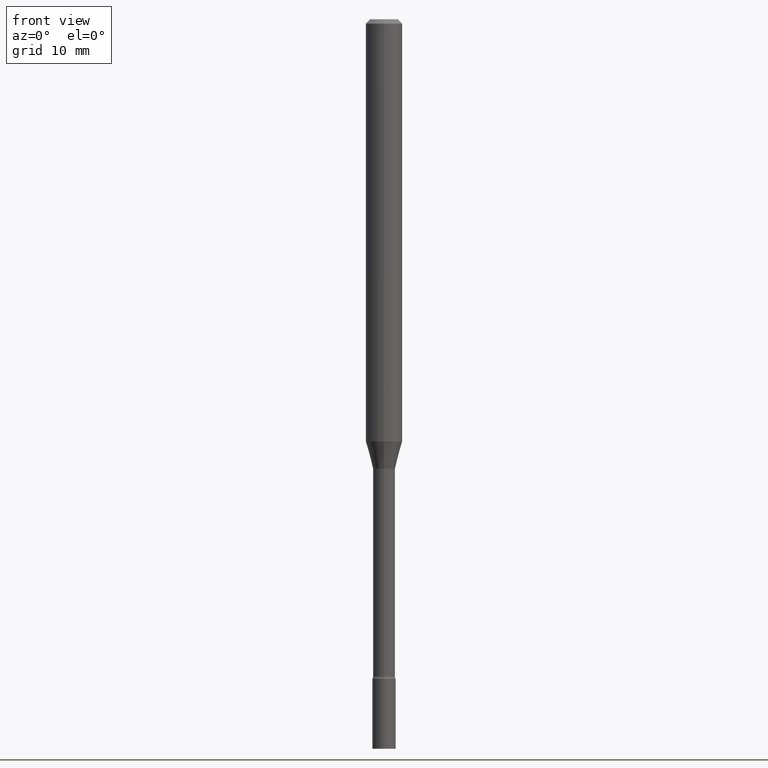
[diagram: clean part render]
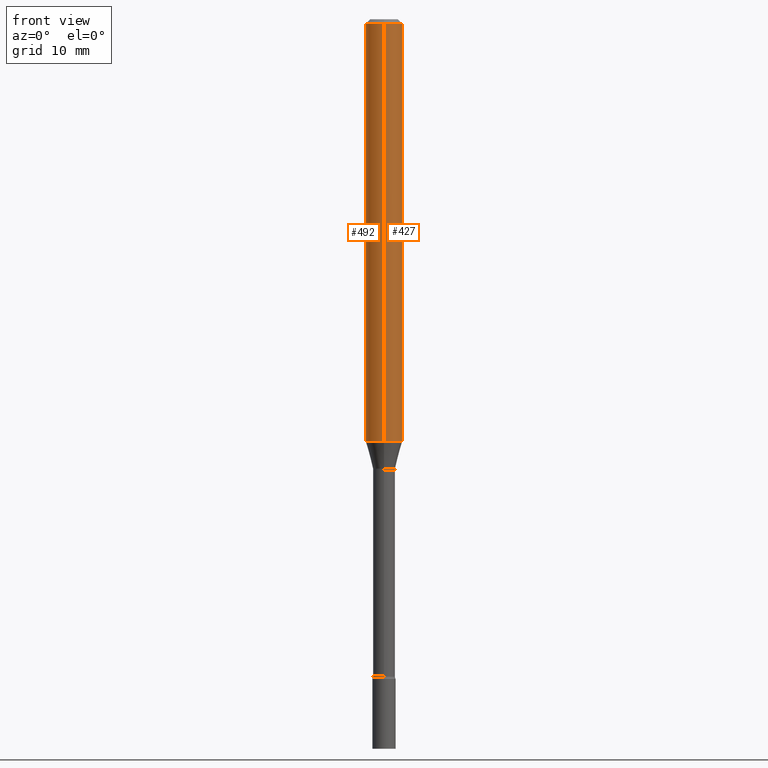
[diagram: same view with one multi-face feature highlighted, each face labeled with its STEP entity id]
A machine part, front view. The highlighted faces form ONE feature: a constant-radius fillet chain: 2 tangent blend faces with common blend radius 1.5875 mm. The faces share edges in the B-rep.
Their STEP definitions:
[1] entity #492 (Cylinder):
#11 = AXIS2_PLACEMENT_3D ( 'NONE', #460, #172, #328 ) ;
#25 = CARTESIAN_POINT ( 'NONE',  ( -4.364351673553565158E-16, -0.06250000000000509315, -1.447071934891535072 ) ) ;
#35 = ORIENTED_EDGE ( 'NONE', *, *, #519, .T. ) ;
#39 = CIRCLE ( 'NONE', #11, 0.06250000000000000000 ) ;
#62 = DIRECTION ( 'NONE',  ( -2.445482954070053837E-29, 3.491461078266697012E-15, 1.000000000000000000 ) ) ;
#75 = VERTEX_POINT ( 'NONE', #25 ) ;
#96 = ORIENTED_EDGE ( 'NONE', *, *, #310, .T. ) ;
#103 = DIRECTION ( 'NONE',  ( -6.982962677686265922E-15, -1.000000000000000000, 3.483106191921935554E-15 ) ) ;
#117 = EDGE_CURVE ( 'NONE', #234, #136, #302, .T. ) ;
#118 = CARTESIAN_POINT ( 'NONE',  ( 4.440892098500625669E-16, 0.06250000000000000000, -2.182163173916685633E-16 ) ) ;
#136 = VERTEX_POINT ( 'NONE', #430 ) ;
#139 = CARTESIAN_POINT ( 'NONE',  ( 4.440892098500982135E-16, 0.06249999999999995143, -0.01500000000000024751 ) ) ;
#141 = DIRECTION ( 'NONE',  ( -2.445482954070053556E-29, 3.491461078266697012E-15, 1.000000000000000000 ) ) ;
#172 = DIRECTION ( 'NONE',  ( -2.445482954070053556E-29, 3.491461078266697012E-15, 1.000000000000000000 ) ) ;
#186 = VECTOR ( 'NONE', #463, 39.37007874015748143 ) ;
#203 = AXIS2_PLACEMENT_3D ( 'NONE', #334, #141, #103 ) ;
#217 = ORIENTED_EDGE ( 'NONE', *, *, #338, .F. ) ;
#229 = FACE_OUTER_BOUND ( 'NONE', #246, .T. ) ;
#231 = VECTOR ( 'NONE', #62, 39.37007874015748143 ) ;
#233 = LINE ( 'NONE', #118, #186 ) ;
#234 = VERTEX_POINT ( 'NONE', #139 ) ;
#246 = EDGE_LOOP ( 'NONE', ( #217, #35, #96, #433 ) ) ;
#249 = VERTEX_POINT ( 'NONE', #428 ) ;
#263 = DIRECTION ( 'NONE',  ( -2.445482954070053556E-29, 3.491461078266697012E-15, 1.000000000000000000 ) ) ;
#302 = CIRCLE ( 'NONE', #203, 0.06250000000000000000 ) ;
#310 = EDGE_CURVE ( 'NONE', #75, #136, #395, .T. ) ;
#328 = DIRECTION ( 'NONE',  ( -6.982962677686265922E-15, -1.000000000000000000, 4.370956789862821150E-15 ) ) ;
#334 = CARTESIAN_POINT ( 'NONE',  ( 3.668224431105087288E-31, -5.237191617400056217E-17, -0.01500000000000003067 ) ) ;
#338 = EDGE_CURVE ( 'NONE', #249, #234, #233, .T. ) ;
#342 = CARTESIAN_POINT ( 'NONE',  ( -4.364351673553916201E-16, -0.06250000000000000000, 2.182163173916685633E-16 ) ) ;
#362 = CYLINDRICAL_SURFACE ( 'NONE', #489, 0.06250000000000000000 ) ;
#395 = LINE ( 'NONE', #342, #231 ) ;
#408 = CARTESIAN_POINT ( 'NONE',  ( 0.000000000000000000, 0.000000000000000000, 0.000000000000000000 ) ) ;
#423 = DIRECTION ( 'NONE',  ( -6.982962677686265922E-15, -1.000000000000000000, 3.491461078266697012E-15 ) ) ;
#428 = CARTESIAN_POINT ( 'NONE',  ( 4.440892098500976219E-16, 0.06249999999999491379, -1.447071934891535516 ) ) ;
#430 = CARTESIAN_POINT ( 'NONE',  ( -4.364351673553912750E-16, -0.06250000000000005551, -0.01499999999999981209 ) ) ;
#433 = ORIENTED_EDGE ( 'NONE', *, *, #117, .F. ) ;
#460 = CARTESIAN_POINT ( 'NONE',  ( 3.538789750090419210E-29, -5.052395338125876196E-15, -1.447071934891535294 ) ) ;
#463 = DIRECTION ( 'NONE',  ( -2.445482954070053837E-29, 3.491461078266697012E-15, 1.000000000000000000 ) ) ;
#489 = AXIS2_PLACEMENT_3D ( 'NONE', #408, #263, #423 ) ;
#492 = ADVANCED_FACE ( 'NONE', ( #229 ), #362, .T. ) ;
#519 = EDGE_CURVE ( 'NONE', #249, #75, #39, .T. ) ;
[2] entity #427 (Cylinder):
#21 = ORIENTED_EDGE ( 'NONE', *, *, #49, .F. ) ;
#25 = CARTESIAN_POINT ( 'NONE',  ( -4.364351673553565158E-16, -0.06250000000000509315, -1.447071934891535072 ) ) ;
#48 = CYLINDRICAL_SURFACE ( 'NONE', #377, 0.06250000000000000000 ) ;
#49 = EDGE_CURVE ( 'NONE', #136, #234, #102, .T. ) ;
#60 = ORIENTED_EDGE ( 'NONE', *, *, #327, .T. ) ;
#62 = DIRECTION ( 'NONE',  ( -2.445482954070053837E-29, 3.491461078266697012E-15, 1.000000000000000000 ) ) ;
#75 = VERTEX_POINT ( 'NONE', #25 ) ;
#102 = CIRCLE ( 'NONE', #175, 0.06250000000000000000 ) ;
#118 = CARTESIAN_POINT ( 'NONE',  ( 4.440892098500625669E-16, 0.06250000000000000000, -2.182163173916685633E-16 ) ) ;
#120 = CIRCLE ( 'NONE', #411, 0.06250000000000000000 ) ;
#123 = DIRECTION ( 'NONE',  ( -6.982962677686265922E-15, -1.000000000000000000, 3.491461078266697012E-15 ) ) ;
#136 = VERTEX_POINT ( 'NONE', #430 ) ;
#139 = CARTESIAN_POINT ( 'NONE',  ( 4.440892098500982135E-16, 0.06249999999999995143, -0.01500000000000024751 ) ) ;
#175 = AXIS2_PLACEMENT_3D ( 'NONE', #278, #212, #193 ) ;
#186 = VECTOR ( 'NONE', #463, 39.37007874015748143 ) ;
#192 = EDGE_LOOP ( 'NONE', ( #60, #276, #21, #292 ) ) ;
#193 = DIRECTION ( 'NONE',  ( -6.982962677686265922E-15, -1.000000000000000000, 3.483106191921935554E-15 ) ) ;
#201 = DIRECTION ( 'NONE',  ( -2.445482954070053556E-29, 3.491461078266697012E-15, 1.000000000000000000 ) ) ;
#212 = DIRECTION ( 'NONE',  ( -2.445482954070053556E-29, 3.491461078266697012E-15, 1.000000000000000000 ) ) ;
#231 = VECTOR ( 'NONE', #62, 39.37007874015748143 ) ;
#233 = LINE ( 'NONE', #118, #186 ) ;
#234 = VERTEX_POINT ( 'NONE', #139 ) ;
#249 = VERTEX_POINT ( 'NONE', #428 ) ;
#262 = CARTESIAN_POINT ( 'NONE',  ( 3.538789750090419210E-29, -5.052395338125876196E-15, -1.447071934891535294 ) ) ;
#276 = ORIENTED_EDGE ( 'NONE', *, *, #338, .T. ) ;
#278 = CARTESIAN_POINT ( 'NONE',  ( 3.668224431105087288E-31, -5.237191617400056217E-17, -0.01500000000000003067 ) ) ;
#292 = ORIENTED_EDGE ( 'NONE', *, *, #310, .F. ) ;
#310 = EDGE_CURVE ( 'NONE', #75, #136, #395, .T. ) ;
#327 = EDGE_CURVE ( 'NONE', #75, #249, #120, .T. ) ;
#338 = EDGE_CURVE ( 'NONE', #249, #234, #233, .T. ) ;
#339 = DIRECTION ( 'NONE',  ( -6.982962677686265922E-15, -1.000000000000000000, 4.370956789862821150E-15 ) ) ;
#342 = CARTESIAN_POINT ( 'NONE',  ( -4.364351673553916201E-16, -0.06250000000000000000, 2.182163173916685633E-16 ) ) ;
#345 = DIRECTION ( 'NONE',  ( -2.445482954070053556E-29, 3.491461078266697012E-15, 1.000000000000000000 ) ) ;
#377 = AXIS2_PLACEMENT_3D ( 'NONE', #399, #201, #123 ) ;
#395 = LINE ( 'NONE', #342, #231 ) ;
#399 = CARTESIAN_POINT ( 'NONE',  ( 0.000000000000000000, 0.000000000000000000, 0.000000000000000000 ) ) ;
#411 = AXIS2_PLACEMENT_3D ( 'NONE', #262, #345, #339 ) ;
#427 = ADVANCED_FACE ( 'NONE', ( #486 ), #48, .T. ) ;
#428 = CARTESIAN_POINT ( 'NONE',  ( 4.440892098500976219E-16, 0.06249999999999491379, -1.447071934891535516 ) ) ;
#430 = CARTESIAN_POINT ( 'NONE',  ( -4.364351673553912750E-16, -0.06250000000000005551, -0.01499999999999981209 ) ) ;
#463 = DIRECTION ( 'NONE',  ( -2.445482954070053837E-29, 3.491461078266697012E-15, 1.000000000000000000 ) ) ;
#486 = FACE_OUTER_BOUND ( 'NONE', #192, .T. ) ;